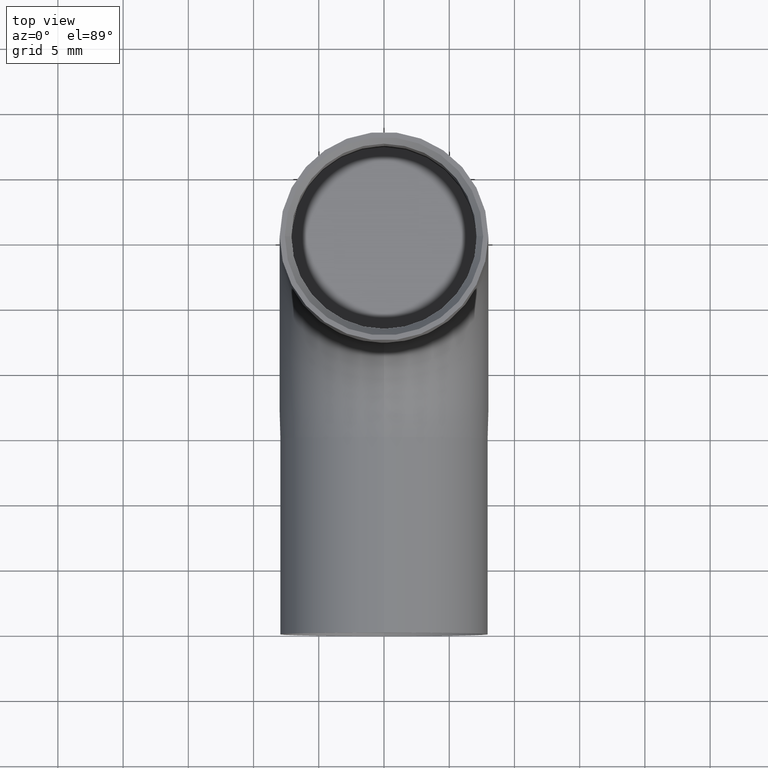
[diagram: clean part render]
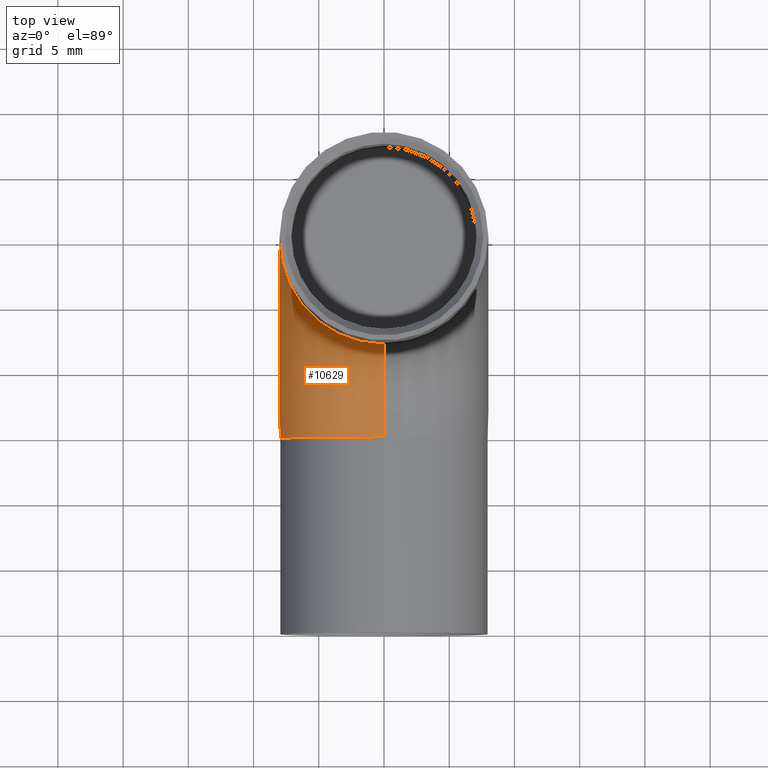
[diagram: same view with one face highlighted and labeled with its STEP entity id]
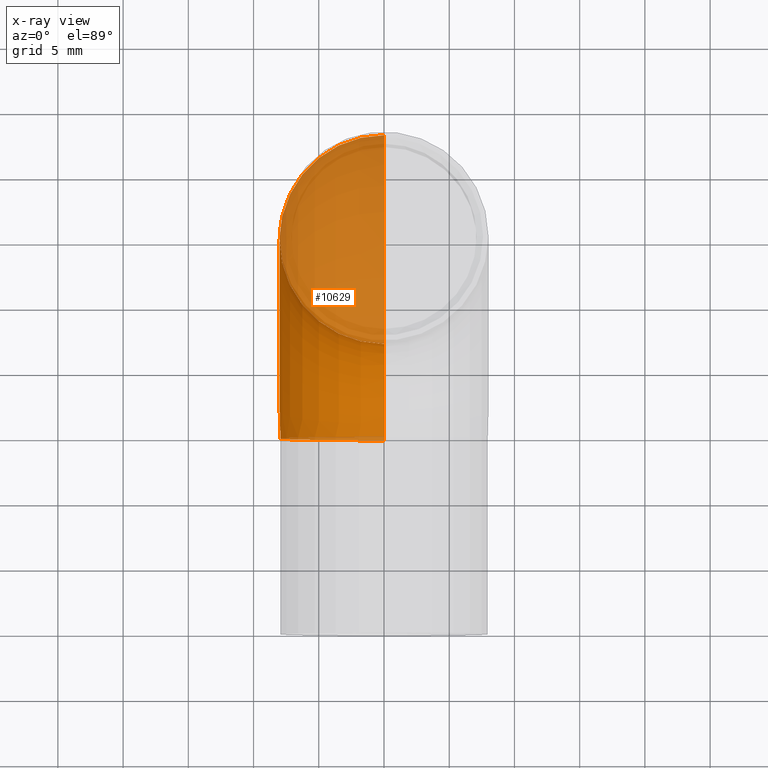
[diagram: x-ray of the same camera — body ghosted, the highlighted face saturated]
A machine part, top view. The second image highlights one B-rep face of the part: STEP entity #10629.
The next image is the same camera in x-ray: the body ghosted, the highlighted face saturated — about 59% of this face is hidden behind the body in this view.
In plain terms, the highlighted toroidal blend (fillet) surface has major radius 15 mm and minor (blend) radius 8 mm.
Its self-contained STEP definition (entity closure, byte-faithful):
#353 = DIRECTION ( 'NONE',  ( 0.000000000000000000, 0.000000000000000000, -1.000000000000000000 ) ) ;
#563 = CARTESIAN_POINT ( 'NONE',  ( 0.000000000000000000, 14.99999999999999645, -7.999999999999998224 ) ) ;
#875 = AXIS2_PLACEMENT_3D ( 'NONE', #4322, #11355, #1401 ) ;
#1401 = DIRECTION ( 'NONE',  ( 0.000000000000000000, 0.000000000000000000, -1.000000000000000000 ) ) ;
#1694 = AXIS2_PLACEMENT_3D ( 'NONE', #3631, #2590, #9631 ) ;
#1713 = CARTESIAN_POINT ( 'NONE',  ( 9.797174393178827630E-16, 14.99999999999999645, 8.000000000000001776 ) ) ;
#1806 = CARTESIAN_POINT ( 'NONE',  ( 0.000000000000000000, 37.99999999999999289, 15.00000000000000355 ) ) ;
#2075 = DIRECTION ( 'NONE',  ( 0.000000000000000000, -1.000000000000000000, -2.168404344971008868E-16 ) ) ;
#2384 = AXIS2_PLACEMENT_3D ( 'NONE', #4768, #4678, #6767 ) ;
#2590 = DIRECTION ( 'NONE',  ( 1.000000000000000000, 0.000000000000000000, 0.000000000000000000 ) ) ;
#2901 = CARTESIAN_POINT ( 'NONE',  ( -9.797174393178821713E-16, 21.99999999999999645, 15.00000000000000178 ) ) ;
#3314 = AXIS2_PLACEMENT_3D ( 'NONE', #4239, #8149, #2075 ) ;
#3432 = DIRECTION ( 'NONE',  ( 0.000000000000000000, -1.000000000000000000, -2.168404344971008868E-16 ) ) ;
#3631 = CARTESIAN_POINT ( 'NONE',  ( -9.797174393178825657E-16, 14.99999999999999645, 15.00000000000000000 ) ) ;
#3676 = CIRCLE ( 'NONE', #2384, 8.000000000000000000 ) ;
#4239 = CARTESIAN_POINT ( 'NONE',  ( 0.000000000000000000, 29.99999999999999645, 15.00000000000000355 ) ) ;
#4258 = FACE_OUTER_BOUND ( 'NONE', #9199, .T. ) ;
#4322 = CARTESIAN_POINT ( 'NONE',  ( 0.000000000000000000, 14.99999999999999645, 15.00000000000000000 ) ) ;
#4598 = VERTEX_POINT ( 'NONE', #1806 ) ;
#4678 = DIRECTION ( 'NONE',  ( 0.000000000000000000, 1.000000000000000000, 0.000000000000000000 ) ) ;
#4768 = CARTESIAN_POINT ( 'NONE',  ( 0.000000000000000000, 14.99999999999999645, 1.734723475976808672E-15 ) ) ;
#5341 = VERTEX_POINT ( 'NONE', #2901 ) ;
#5709 = AXIS2_PLACEMENT_3D ( 'NONE', #6220, #9347, #3432 ) ;
#6038 = EDGE_CURVE ( 'NONE', #9186, #5341, #6318, .T. ) ;
#6220 = CARTESIAN_POINT ( 'NONE',  ( 0.000000000000000000, 29.99999999999999645, 15.00000000000000355 ) ) ;
#6318 = CIRCLE ( 'NONE', #1694, 6.999999999999997335 ) ;
#6767 = DIRECTION ( 'NONE',  ( 0.000000000000000000, 0.000000000000000000, 1.000000000000000000 ) ) ;
#7072 = VERTEX_POINT ( 'NONE', #563 ) ;
#8149 = DIRECTION ( 'NONE',  ( 0.000000000000000000, -1.608122649676636601E-16, 1.000000000000000000 ) ) ;
#8562 = ORIENTED_EDGE ( 'NONE', *, *, #6038, .T. ) ;
#8904 = CARTESIAN_POINT ( 'NONE',  ( -8.000000000000000000, 29.99999999999999645, 15.00000000000000355 ) ) ;
#8976 = EDGE_CURVE ( 'NONE', #4598, #10884, #10505, .T. ) ;
#9186 = VERTEX_POINT ( 'NONE', #1713 ) ;
#9199 = EDGE_LOOP ( 'NONE', ( #9365, #12670, #8562, #9251, #9667 ) ) ;
#9221 = EDGE_CURVE ( 'NONE', #7072, #9186, #3676, .T. ) ;
#9228 = TOROIDAL_SURFACE ( 'NONE', #10289, 14.99999999999999822, 8.000000000000000000 ) ;
#9251 = ORIENTED_EDGE ( 'NONE', *, *, #12732, .F. ) ;
#9347 = DIRECTION ( 'NONE',  ( 0.000000000000000000, -1.608122649676636601E-16, 1.000000000000000000 ) ) ;
#9365 = ORIENTED_EDGE ( 'NONE', *, *, #11648, .F. ) ;
#9631 = DIRECTION ( 'NONE',  ( 0.000000000000000000, 0.000000000000000000, -1.000000000000000000 ) ) ;
#9651 = CIRCLE ( 'NONE', #5709, 8.000000000000000000 ) ;
#9667 = ORIENTED_EDGE ( 'NONE', *, *, #8976, .F. ) ;
#10152 = CIRCLE ( 'NONE', #875, 23.00000000000000000 ) ;
#10289 = AXIS2_PLACEMENT_3D ( 'NONE', #10309, #12225, #353 ) ;
#10309 = CARTESIAN_POINT ( 'NONE',  ( 0.000000000000000000, 14.99999999999999645, 15.00000000000000000 ) ) ;
#10505 = CIRCLE ( 'NONE', #3314, 8.000000000000000000 ) ;
#10629 = ADVANCED_FACE ( 'NONE', ( #4258 ), #9228, .T. ) ;
#10884 = VERTEX_POINT ( 'NONE', #8904 ) ;
#11355 = DIRECTION ( 'NONE',  ( 1.000000000000000000, 0.000000000000000000, 0.000000000000000000 ) ) ;
#11648 = EDGE_CURVE ( 'NONE', #7072, #4598, #10152, .T. ) ;
#12225 = DIRECTION ( 'NONE',  ( 1.000000000000000000, 0.000000000000000000, 0.000000000000000000 ) ) ;
#12670 = ORIENTED_EDGE ( 'NONE', *, *, #9221, .T. ) ;
#12732 = EDGE_CURVE ( 'NONE', #10884, #5341, #9651, .T. ) ;